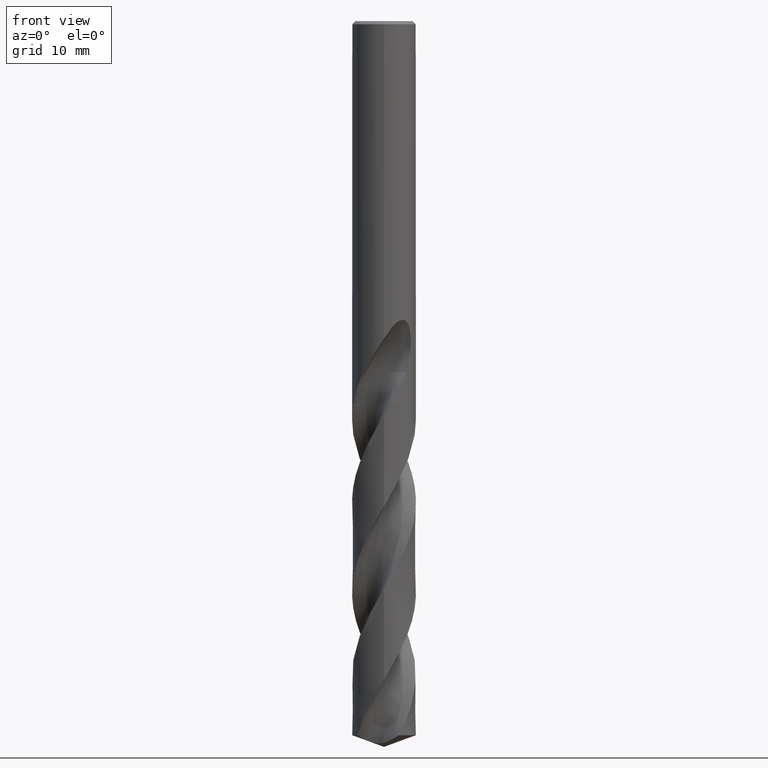
[diagram: clean part render]
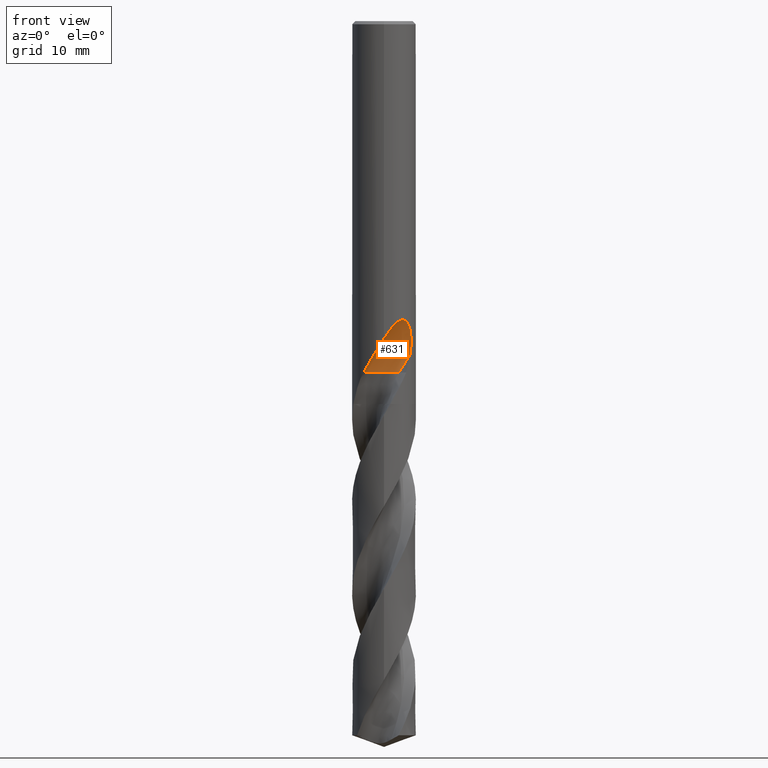
[diagram: same view with one face highlighted and labeled with its STEP entity id]
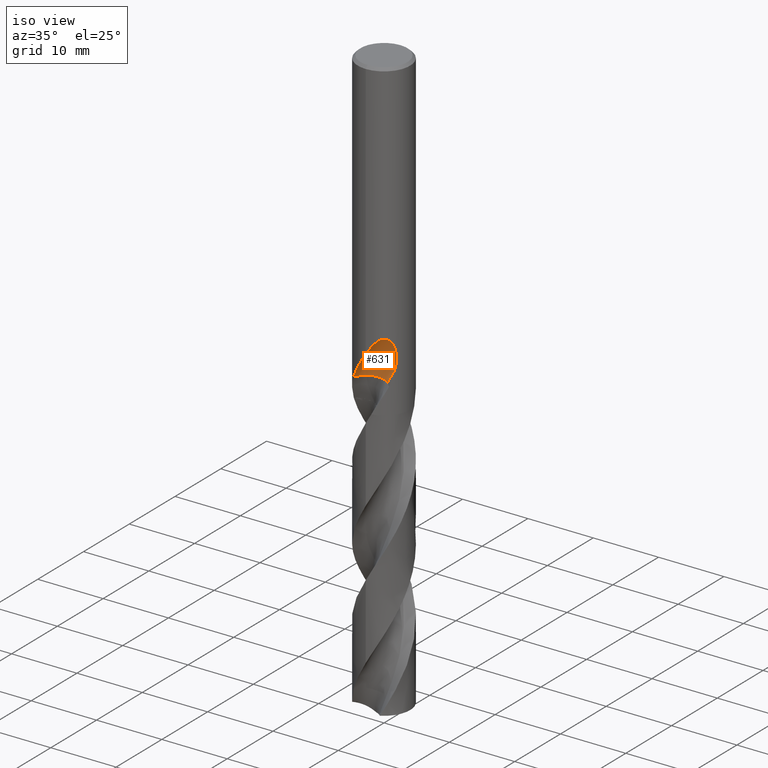
[diagram: same view with one face highlighted and labeled with its STEP entity id]
A machine part, front view. The second image highlights one B-rep face of the part: STEP entity #631.
A second angle (iso view) of the same face is appended — the face is thin or edge-on in the first view.
In plain terms, the highlighted face is a SurfaceOfRevolution surface.
Its self-contained STEP definition (entity closure, byte-faithful):
#321=EDGE_CURVE('',#599,#365,#824,.T.);
#345=VERTEX_POINT('',#851);
#365=VERTEX_POINT('',#874);
#439=EDGE_CURVE('',#365,#345,#955,.T.);
#555=VERTEX_POINT('',#1081);
#557=EDGE_CURVE('',#555,#345,#1083,.T.);
#597=EDGE_CURVE('',#719,#555,#1125,.T.);
#599=VERTEX_POINT('',#1127);
#631=ADVANCED_FACE('',(#1162),#1163,.F.);
#701=EDGE_CURVE('',#599,#719,#1238,.T.);
#719=VERTEX_POINT('',#1258);
#824=B_SPLINE_CURVE_WITH_KNOTS('',3,(#2294,#2295,#2296,#2297,#2298,#2299,#2300,#2301,#2302,#2303,#2304,#2305,#2306,#2307,#2308,#2309,#2310,#2311,#2312,#2313,#2314,#2315,#2316,#2317,#2318,#2319,#2320,#2321,#2322,#2323),.UNSPECIFIED.,.F.,.F.,(4,2,2,2,2,2,2,2,2,2,2,2,2,2,4),(0.0,1.9597762407695,3.02985967370596,3.99908599318602,5.1250937722548,6.47768674139874,7.65000215056726,8.18125540149219,8.56953673186899,8.93696441781943,9.40306833899536,10.0849972789282,11.0544394482058,11.6888355435201,12.3555427460073),.UNSPECIFIED.);
#851=CARTESIAN_POINT('',(3.25456865325919,-2.32546401417495,-41.862679091506));
#874=CARTESIAN_POINT('',(1.18285448710148E-012,-4.0,-39.8010886237942));
#955=B_SPLINE_CURVE_WITH_KNOTS('',3,(#3882,#3883,#3884,#3885,#3886,#3887,#3888,#3889,#3890,#3891,#3892,#3893,#3894,#3895,#3896,#3897,#3898,#3899,#3900,#3901,#3902,#3903,#3904,#3905,#3906,#3907,#3908,#3909,#3910,#3911),.UNSPECIFIED.,.F.,.F.,(4,2,2,2,2,2,2,2,2,2,2,2,2,2,4),(0.0,1.9597762407695,3.02985967370596,3.99908599318602,5.1250937722548,6.47768674139874,7.65000215056726,8.18125540149219,8.56953673186899,8.93696441781943,9.40306833899536,10.0849972789282,11.0544394482058,11.6888355435201,12.3555427460073),.UNSPECIFIED.);
#1081=CARTESIAN_POINT('',(1.88561808545044,-1.98104858454956,-44.053));
#1083=CIRCLE('',#5626,17.3810396163249);
#1125=CIRCLE('',#5816,2.66666667);
#1127=CARTESIAN_POINT('',(-2.54885976013372,-3.08274454393663,-44.053));
#1162=FACE_OUTER_BOUND('',#6615,.T.);
#1163=SURFACE_OF_REVOLUTION('',#6616,#6617);
#1238=CIRCLE('',#6943,2.66666667);
#1258=CARTESIAN_POINT('',(0.458791990393921,-1.23974987486383,-44.053));
#2294=CARTESIAN_POINT('',(-2.54885976013373,-3.08274454393663,-44.053));
#2295=CARTESIAN_POINT('',(-2.28500523660261,-3.30090345005828,-43.4966417767988));
#2296=CARTESIAN_POINT('',(-1.98163231588754,-3.49483155995579,-42.977936421169));
#2297=CARTESIAN_POINT('',(-1.45264038690853,-3.73253113273964,-42.1114036522165));
#2298=CARTESIAN_POINT('',(-1.26228426683797,-3.80090830680973,-41.8065283302373));
#2299=CARTESIAN_POINT('',(-0.893778878987868,-3.90310035133814,-41.2163687713546));
#2300=CARTESIAN_POINT('',(-0.717274980064561,-3.93920455800776,-40.9338353559214));
#2301=CARTESIAN_POINT('',(-0.335218398320563,-3.99131183045807,-40.3249008687613));
#2302=CARTESIAN_POINT('',(-0.12647439608519,-4.00354517408276,-39.9937333591077));
#2303=CARTESIAN_POINT('',(0.337092631504076,-3.99379417253619,-39.2852567198373));
#2304=CARTESIAN_POINT('',(0.611941054861158,-3.96363461880696,-38.8821257542007));
#2305=CARTESIAN_POINT('',(1.14195068256936,-3.84183599193105,-38.2173906398542));
#2306=CARTESIAN_POINT('',(1.43518376737336,-3.74904084478621,-37.8930259656217));
#2307=CARTESIAN_POINT('',(1.87898919238024,-3.53454780533532,-37.5892910671245));
#2308=CARTESIAN_POINT('',(2.02589175203401,-3.45357173492743,-37.5142260075858));
#2309=CARTESIAN_POINT('',(2.28329880223289,-3.28684001880263,-37.4565626198684));
#2310=CARTESIAN_POINT('',(2.38887588461982,-3.21090914700582,-37.4554859280565));
#2311=CARTESIAN_POINT('',(2.58551889986571,-3.05450740730474,-37.5059535003711));
#2312=CARTESIAN_POINT('',(2.67152074136919,-2.9789684922271,-37.5532713078944));
#2313=CARTESIAN_POINT('',(2.8465335331701,-2.81343086569157,-37.7013232644774));
#2314=CARTESIAN_POINT('',(2.92750237022739,-2.72764511666502,-37.8106329899809));
#2315=CARTESIAN_POINT('',(3.09335272716445,-2.54032566393318,-38.1099569518953));
#2316=CARTESIAN_POINT('',(3.17262589307932,-2.43831682967145,-38.3319668721969));
#2317=CARTESIAN_POINT('',(3.32169614375787,-2.233484397464,-38.953125946192));
#2318=CARTESIAN_POINT('',(3.37558848211908,-2.14623565430961,-39.3955071231947));
#2319=CARTESIAN_POINT('',(3.40226299691169,-2.10356902640446,-40.21424616535));
#2320=CARTESIAN_POINT('',(3.39599104218287,-2.1139685132873,-40.5403087544243));
#2321=CARTESIAN_POINT('',(3.35169145718829,-2.18356392775092,-41.2020529092011));
#2322=CARTESIAN_POINT('',(3.31213718412786,-2.24489483106254,-41.5352437340999));
#2323=CARTESIAN_POINT('',(3.25456865325918,-2.32546401417496,-41.862679091506));
#3882=CARTESIAN_POINT('',(-2.54885976013373,-3.08274454393663,-44.053));
#3883=CARTESIAN_POINT('',(-2.28500523660261,-3.30090345005828,-43.4966417767988));
#3884=CARTESIAN_POINT('',(-1.98163231588754,-3.49483155995579,-42.977936421169));
#3885=CARTESIAN_POINT('',(-1.45264038690853,-3.73253113273964,-42.1114036522165));
#3886=CARTESIAN_POINT('',(-1.26228426683797,-3.80090830680973,-41.8065283302373));
#3887=CARTESIAN_POINT('',(-0.893778878987868,-3.90310035133814,-41.2163687713546));
#3888=CARTESIAN_POINT('',(-0.717274980064561,-3.93920455800776,-40.9338353559214));
#3889=CARTESIAN_POINT('',(-0.335218398320563,-3.99131183045807,-40.3249008687613));
#3890=CARTESIAN_POINT('',(-0.12647439608519,-4.00354517408276,-39.9937333591077));
#3891=CARTESIAN_POINT('',(0.337092631504076,-3.99379417253619,-39.2852567198373));
#3892=CARTESIAN_POINT('',(0.611941054861158,-3.96363461880696,-38.8821257542007));
#3893=CARTESIAN_POINT('',(1.14195068256936,-3.84183599193105,-38.2173906398542));
#3894=CARTESIAN_POINT('',(1.43518376737336,-3.74904084478621,-37.8930259656217));
#3895=CARTESIAN_POINT('',(1.87898919238024,-3.53454780533532,-37.5892910671245));
#3896=CARTESIAN_POINT('',(2.02589175203401,-3.45357173492743,-37.5142260075858));
#3897=CARTESIAN_POINT('',(2.28329880223289,-3.28684001880263,-37.4565626198684));
#3898=CARTESIAN_POINT('',(2.38887588461982,-3.21090914700582,-37.4554859280565));
#3899=CARTESIAN_POINT('',(2.58551889986571,-3.05450740730474,-37.5059535003711));
#3900=CARTESIAN_POINT('',(2.67152074136919,-2.9789684922271,-37.5532713078944));
#3901=CARTESIAN_POINT('',(2.8465335331701,-2.81343086569157,-37.7013232644774));
#3902=CARTESIAN_POINT('',(2.92750237022739,-2.72764511666502,-37.8106329899809));
#3903=CARTESIAN_POINT('',(3.09335272716445,-2.54032566393318,-38.1099569518953));
#3904=CARTESIAN_POINT('',(3.17262589307932,-2.43831682967145,-38.3319668721969));
#3905=CARTESIAN_POINT('',(3.32169614375787,-2.233484397464,-38.953125946192));
#3906=CARTESIAN_POINT('',(3.37558848211908,-2.14623565430961,-39.3955071231947));
#3907=CARTESIAN_POINT('',(3.40226299691169,-2.10356902640446,-40.21424616535));
#3908=CARTESIAN_POINT('',(3.39599104218287,-2.1139685132873,-40.5403087544243));
#3909=CARTESIAN_POINT('',(3.35169145718829,-2.18356392775092,-41.2020529092011));
#3910=CARTESIAN_POINT('',(3.31213718412786,-2.24489483106254,-41.5352437340999));
#3911=CARTESIAN_POINT('',(3.25456865325918,-2.32546401417496,-41.862679091506));
#5626=AXIS2_PLACEMENT_3D('',#9084,#9085,#9086);
#5816=AXIS2_PLACEMENT_3D('',#9122,#9123,#9124);
#6615=EDGE_LOOP('',(#9155,#9156,#9157,#9158,#9159));
#6616=(B_SPLINE_CURVE(3,(#9161,#9162,#9163,#9164,#9165,#9166,#9167,#9168,#9169),.UNSPECIFIED.,.F.,.F.)B_SPLINE_CURVE_WITH_KNOTS((4,1,3,1,4),(-2.85637185927229,-2.5535828219874,-2.25079378470251,-1.94800474741762,-1.64521571013273),.UNSPECIFIED.)RATIONAL_B_SPLINE_CURVE((1.09168120109991,1.03056040036664,0.969439599633363,1.03056040036664,1.09168120109991,1.03056040036664,0.969439599633363,1.03056040036664,1.09168120109991))BOUNDED_CURVE()REPRESENTATION_ITEM('')GEOMETRIC_REPRESENTATION_ITEM()CURVE());
#6617=AXIS1_PLACEMENT('',#9176,#9177);
#6943=AXIS2_PLACEMENT_3D('',#9234,#9235,#9236);
#9084=CARTESIAN_POINT('',(1.35595008391942,-19.33333335,-44.9004688024496));
#9085=DIRECTION('',(0.847998304005088,0.0,-0.52999894000318));
#9086=DIRECTION('',(0.0535598120485791,0.994880693178143,0.0856956992777266));
#9122=CARTESIAN_POINT('',(-1.63299322933957E-005,-3.86665034006771,-44.053));
#9123=DIRECTION('',(-0.0,0.0,-1.0));
#9124=DIRECTION('',(-0.707100657435429,-0.707112904884633,0.0));
#9155=ORIENTED_EDGE('',*,*,#321,.F.);
#9156=ORIENTED_EDGE('',*,*,#701,.T.);
#9157=ORIENTED_EDGE('',*,*,#597,.T.);
#9158=ORIENTED_EDGE('',*,*,#557,.T.);
#9159=ORIENTED_EDGE('',*,*,#439,.F.);
#9161=CARTESIAN_POINT('',(1.88561808545044,-1.98104858454956,-44.053));
#9162=CARTESIAN_POINT('',(1.51627887929107,-1.61170298119184,-44.053));
#9163=CARTESIAN_POINT('',(0.555888248773304,-1.08689778631539,-44.053));
#9164=CARTESIAN_POINT('',(-0.532470674678394,-1.20198692350343,-44.053));
#9165=CARTESIAN_POINT('',(-1.01544885395797,-1.40088313328607,-44.053));
#9166=CARTESIAN_POINT('',(-1.49842703323755,-1.5997793430687,-44.053));
#9167=CARTESIAN_POINT('',(-2.35220999330018,-2.28448753847921,-44.053));
#9168=CARTESIAN_POINT('',(-2.66452195405557,-3.33340693239123,-44.053));
#9169=CARTESIAN_POINT('',(-2.66666064626455,-3.85573159189119,-44.053));
#9176=CARTESIAN_POINT('',(1.35595008391942,-19.33333335,-44.9004688024496));
#9177=DIRECTION('',(-0.847998304005088,0.0,0.52999894000318));
#9234=CARTESIAN_POINT('',(-1.63299322933957E-005,-3.86665034006771,-44.053));
#9235=DIRECTION('',(-0.0,0.0,-1.0));
#9236=DIRECTION('',(-0.707100657435429,-0.707112904884633,0.0));